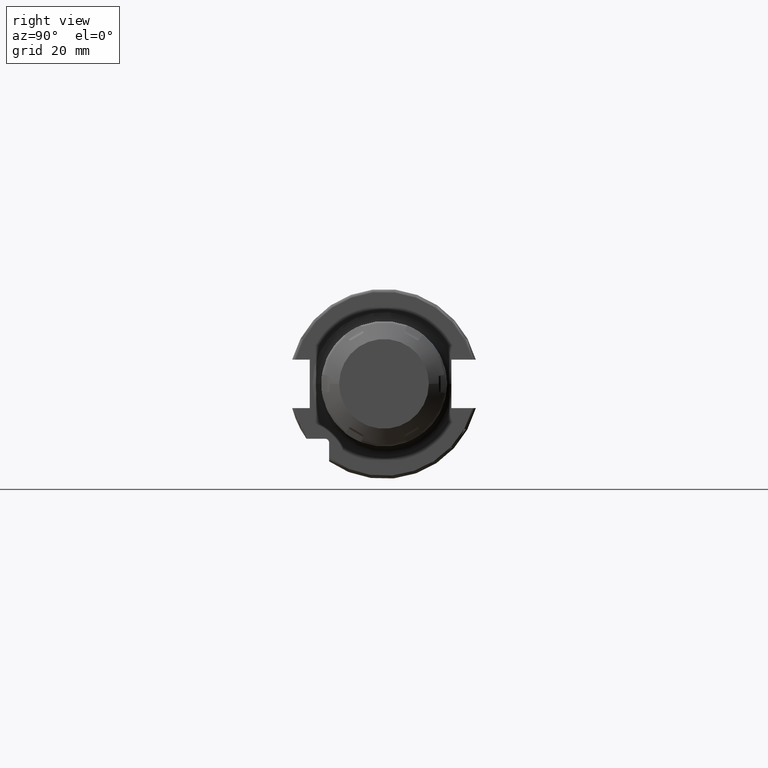
[diagram: clean part render]
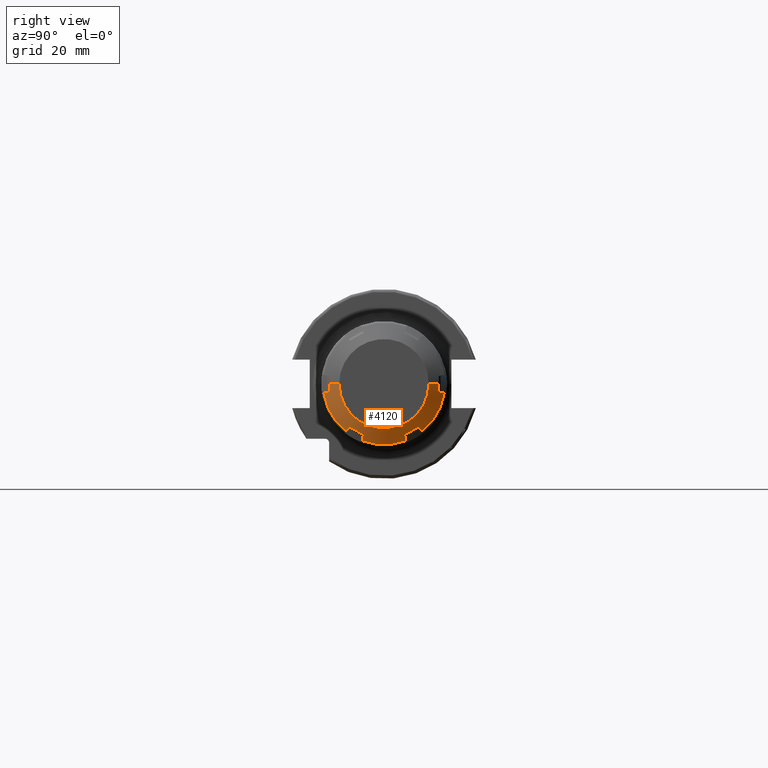
[diagram: same view with one face highlighted and labeled with its STEP entity id]
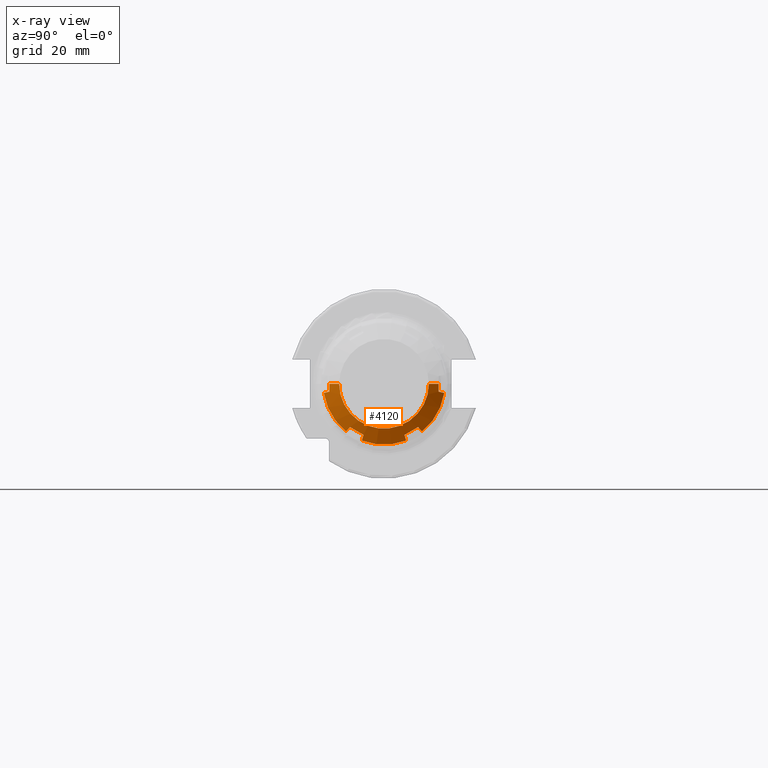
[diagram: x-ray of the same camera — body ghosted, the highlighted face saturated]
A machine part, right view. The second image highlights one B-rep face of the part: STEP entity #4120.
The next image is the same camera in x-ray: the body ghosted, the highlighted face saturated — about 0% of this face is hidden behind the body in this view.
In plain terms, the highlighted conical surface has half-angle 60 deg.
Its self-contained STEP definition (entity closure, byte-faithful):
#3184=CARTESIAN_POINT('',(1.689674230311E1,7.405303719456E0,-1.898162537357E1));
#3185=CARTESIAN_POINT('',(1.708907504526E1,7.313084535866E0,-1.866001886072E1));
#3186=CARTESIAN_POINT('',(1.747048804972E1,7.130166601835E0,-1.802210821554E1));
#3187=CARTESIAN_POINT('',(1.784538315893E1,6.950287483250E0,-1.739479517924E1));
#3188=CARTESIAN_POINT('',(1.803119743883E1,6.861107026386E0,-1.708378596587E1));
#3190=CARTESIAN_POINT('',(1.689674230311E1,-1.915276904626E-14,0.E0));
#3191=DIRECTION('',(-1.E0,0.E0,0.E0));
#3192=DIRECTION('',(0.E0,3.634504892985E-1,-9.316135152673E-1));
#3193=AXIS2_PLACEMENT_3D('',#3190,#3191,#3192);
#3195=CARTESIAN_POINT('',(1.803119743883E1,-6.861107026386E0,
-1.708378596587E1));
#3196=CARTESIAN_POINT('',(1.784547076956E1,-6.950245435050E0,
-1.739464853974E1));
#3197=CARTESIAN_POINT('',(1.747066334160E1,-7.130082516612E0,
-1.802181497552E1));
#3198=CARTESIAN_POINT('',(1.708916272E1,-7.313042497819E0,-1.865987225663E1));
#3199=CARTESIAN_POINT('',(1.689674230311E1,-7.405303719456E0,
-1.898162537357E1));
#3201=CARTESIAN_POINT('',(1.803119743883E1,-1.136443912607E1,
-1.448378596587E1));
#3202=CARTESIAN_POINT('',(1.807831826555E1,-1.086395978015E1,
-1.477273785096E1));
#3203=CARTESIAN_POINT('',(1.814168574823E1,-9.863120560131E0,
-1.535057264405E1));
#3204=CARTESIAN_POINT('',(1.814168449187E1,-8.362394930781E0,
-1.621701699013E1));
#3205=CARTESIAN_POINT('',(1.807831703246E1,-7.361573275411E0,
-1.679484164227E1));
#3206=CARTESIAN_POINT('',(1.803119743883E1,-6.861107026386E0,
-1.708378596587E1));
#3208=CARTESIAN_POINT('',(1.689674230311E1,-1.273591791890E1,
-1.590399383057E1));
#3209=CARTESIAN_POINT('',(1.708907504526E1,-1.250350810055E1,
-1.566332641844E1));
#3210=CARTESIAN_POINT('',(1.747048804972E1,-1.204252024350E1,
-1.518595951818E1));
#3211=CARTESIAN_POINT('',(1.784538315893E1,-1.158919077723E1,
-1.471652311372E1));
#3212=CARTESIAN_POINT('',(1.803119743883E1,-1.136443912607E1,
-1.448378596587E1));
#3214=CARTESIAN_POINT('',(1.689674230311E1,-1.915276904626E-14,0.E0));
#3215=DIRECTION('',(-1.E0,0.E0,0.E0));
#3216=DIRECTION('',(0.E0,-6.250757260812E-1,-7.805641143840E-1));
#3217=AXIS2_PLACEMENT_3D('',#3214,#3215,#3216);
#3219=CARTESIAN_POINT('',(1.803119743883E1,-1.822554615245E1,-2.6E0));
#3220=CARTESIAN_POINT('',(1.784547076956E1,-1.853933024284E1,
-2.678235160582E0));
#3221=CARTESIAN_POINT('',(1.747066334160E1,-1.917239084941E1,
-2.836074897296E0));
#3222=CARTESIAN_POINT('',(1.708916272E1,-1.981644465452E1,-2.996655546247E0));
#3223=CARTESIAN_POINT('',(1.689674230311E1,-2.014122163836E1,
-3.077631542997E0));
#3225=CARTESIAN_POINT('',(1.813773006060E1,-1.822554615245E1,0.E0));
#3226=CARTESIAN_POINT('',(1.813773006060E1,-1.822554615245E1,
-2.889809035546E-1));
#3227=CARTESIAN_POINT('',(1.812978891864E1,-1.822554615245E1,
-8.668802635554E-1));
#3228=CARTESIAN_POINT('',(1.809415446357E1,-1.822554615245E1,
-1.733491685998E0));
#3229=CARTESIAN_POINT('',(1.805474752385E1,-1.822554615245E1,
-2.311174784706E0));
#3230=CARTESIAN_POINT('',(1.803119743883E1,-1.822554615245E1,-2.6E0));
#3232=DIRECTION('',(-5.E-1,-8.660254037844E-1,0.E0));
#3233=VECTOR('',#3232,3.724539878802E0);
#3234=CARTESIAN_POINT('',(2.E1,-1.5E1,0.E0));
#3235=LINE('',#3234,#3233);
#3236=CARTESIAN_POINT('',(2.E1,-2.266909448450E-14,0.E0));
#3237=DIRECTION('',(-1.E0,0.E0,0.E0));
#3238=DIRECTION('',(0.E0,1.E0,0.E0));
#3239=AXIS2_PLACEMENT_3D('',#3236,#3237,#3238);
#3241=DIRECTION('',(-5.E-1,8.660254037844E-1,1.219275797742E-14));
#3242=VECTOR('',#3241,3.724539878802E0);
#3243=CARTESIAN_POINT('',(2.E1,1.5E1,0.E0));
#3244=LINE('',#3243,#3242);
#3245=CARTESIAN_POINT('',(1.803119743883E1,1.822554615245E1,-2.6E0));
#3246=CARTESIAN_POINT('',(1.805475075341E1,1.822554615245E1,-2.311135176476E0));
#3247=CARTESIAN_POINT('',(1.809415978675E1,1.822554615245E1,-1.733399257211E0));
#3248=CARTESIAN_POINT('',(1.812979067473E1,1.822554615245E1,
-8.668016124823E-1));
#3249=CARTESIAN_POINT('',(1.813773006060E1,1.822554615245E1,
-2.889472613191E-1));
#3250=CARTESIAN_POINT('',(1.813773006060E1,1.822554615245E1,
4.663706011864E-14));
#3252=CARTESIAN_POINT('',(1.689674230311E1,2.014122163836E1,-3.077631542997E0));
#3253=CARTESIAN_POINT('',(1.708907504526E1,1.981659263641E1,-2.996692442277E0));
#3254=CARTESIAN_POINT('',(1.747048804972E1,1.917268684533E1,-2.836148697367E0));
#3255=CARTESIAN_POINT('',(1.784538315893E1,1.853947826048E1,-2.678272065523E0));
#3256=CARTESIAN_POINT('',(1.803119743883E1,1.822554615245E1,-2.6E0));
#3258=CARTESIAN_POINT('',(1.689674230311E1,-1.915276904626E-14,0.E0));
#3259=DIRECTION('',(-1.E0,0.E0,0.E0));
#3260=DIRECTION('',(0.E0,9.885262153796E-1,-1.510494008833E-1));
#3261=AXIS2_PLACEMENT_3D('',#3258,#3259,#3260);
#3263=CARTESIAN_POINT('',(1.803119743883E1,1.136443912607E1,-1.448378596587E1));
#3264=CARTESIAN_POINT('',(1.784547076956E1,1.158908480779E1,-1.471641337916E1));
#3265=CARTESIAN_POINT('',(1.747066334160E1,1.204230833280E1,-1.518574007823E1));
#3266=CARTESIAN_POINT('',(1.708916272E1,1.250340215670E1,-1.566321671038E1));
#3267=CARTESIAN_POINT('',(1.689674230311E1,1.273591791890E1,-1.590399383057E1));
#3269=CARTESIAN_POINT('',(1.803119743883E1,6.861107026386E0,-1.708378596587E1));
#3270=CARTESIAN_POINT('',(1.807831826555E1,7.361586372305E0,-1.679483408078E1));
#3271=CARTESIAN_POINT('',(1.814168574823E1,8.362425592320E0,-1.621699928769E1));
#3272=CARTESIAN_POINT('',(1.814168449187E1,9.863151221670E0,-1.535055494160E1));
#3273=CARTESIAN_POINT('',(1.807831703246E1,1.086397287704E1,-1.477273028946E1));
#3274=CARTESIAN_POINT('',(1.803119743883E1,1.136443912607E1,-1.448378596587E1));
#3551=CARTESIAN_POINT('',(1.813773006060E1,1.822554615245E1,
4.663706011864E-14));
#3568=CARTESIAN_POINT('',(1.813773006060E1,-1.822554615245E1,0.E0));
#3968=CARTESIAN_POINT('',(2.E1,1.5E1,0.E0));
#3969=CARTESIAN_POINT('',(2.E1,-1.5E1,0.E0));
#3970=VERTEX_POINT('',#3968);
#3971=VERTEX_POINT('',#3969);
#3982=VERTEX_POINT('',#3551);
#3983=VERTEX_POINT('',#3252);
#3984=VERTEX_POINT('',#3256);
#4027=VERTEX_POINT('',#3568);
#4028=VERTEX_POINT('',#3219);
#4029=VERTEX_POINT('',#3223);
#4042=VERTEX_POINT('',#3208);
#4043=VERTEX_POINT('',#3212);
#4044=VERTEX_POINT('',#3195);
#4045=VERTEX_POINT('',#3199);
#4056=VERTEX_POINT('',#3184);
#4057=VERTEX_POINT('',#3188);
#4058=VERTEX_POINT('',#3263);
#4059=VERTEX_POINT('',#3267);
#4082=CARTESIAN_POINT('',(1.844837115155E1,-2.091093176538E-14,0.E0));
#4083=DIRECTION('',(-1.E0,0.E0,0.E0));
#4084=DIRECTION('',(0.E0,1.E0,0.E0));
#4085=AXIS2_PLACEMENT_3D('',#4082,#4083,#4084);
#4086=CONICAL_SURFACE('',#4085,1.76875E1,6.E1);
#4088=ORIENTED_EDGE('',*,*,#4087,.F.);
#4090=ORIENTED_EDGE('',*,*,#4089,.T.);
#4092=ORIENTED_EDGE('',*,*,#4091,.F.);
#4094=ORIENTED_EDGE('',*,*,#4093,.F.);
#4096=ORIENTED_EDGE('',*,*,#4095,.F.);
#4098=ORIENTED_EDGE('',*,*,#4097,.T.);
#4100=ORIENTED_EDGE('',*,*,#4099,.F.);
#4102=ORIENTED_EDGE('',*,*,#4101,.F.);
#4104=ORIENTED_EDGE('',*,*,#4103,.F.);
#4105=ORIENTED_EDGE('',*,*,#4075,.F.);
#4107=ORIENTED_EDGE('',*,*,#4106,.T.);
#4109=ORIENTED_EDGE('',*,*,#4108,.F.);
#4111=ORIENTED_EDGE('',*,*,#4110,.F.);
#4113=ORIENTED_EDGE('',*,*,#4112,.T.);
#4115=ORIENTED_EDGE('',*,*,#4114,.F.);
#4117=ORIENTED_EDGE('',*,*,#4116,.F.);
#4118=EDGE_LOOP('',(#4088,#4090,#4092,#4094,#4096,#4098,#4100,#4102,#4104,#4105,
#4107,#4109,#4111,#4113,#4115,#4117));
#4119=FACE_OUTER_BOUND('',#4118,.F.);
#4120=ADVANCED_FACE('',(#4119),#4086,.T.);
#3189=B_SPLINE_CURVE_WITH_KNOTS('',3,(#3184,#3185,#3186,#3187,#3188),
.UNSPECIFIED.,.F.,.F.,(4,1,4),(0.E0,5.E-1,1.E0),.UNSPECIFIED.);
#3194=CIRCLE('',#3193,2.0375E1);
#3200=B_SPLINE_CURVE_WITH_KNOTS('',3,(#3195,#3196,#3197,#3198,#3199),
.UNSPECIFIED.,.F.,.F.,(4,1,4),(0.E0,5.E-1,1.E0),.UNSPECIFIED.);
#3207=B_SPLINE_CURVE_WITH_KNOTS('',3,(#3201,#3202,#3203,#3204,#3205,#3206),
.UNSPECIFIED.,.F.,.F.,(4,1,1,4),(0.E0,3.333333333333E-1,6.666666666667E-1,1.E0),
.UNSPECIFIED.);
#3213=B_SPLINE_CURVE_WITH_KNOTS('',3,(#3208,#3209,#3210,#3211,#3212),
.UNSPECIFIED.,.F.,.F.,(4,1,4),(0.E0,5.E-1,1.E0),.UNSPECIFIED.);
#3218=CIRCLE('',#3217,2.0375E1);
#3224=B_SPLINE_CURVE_WITH_KNOTS('',3,(#3219,#3220,#3221,#3222,#3223),
.UNSPECIFIED.,.F.,.F.,(4,1,4),(0.E0,5.E-1,1.E0),.UNSPECIFIED.);
#3231=B_SPLINE_CURVE_WITH_KNOTS('',3,(#3225,#3226,#3227,#3228,#3229,#3230),
.UNSPECIFIED.,.F.,.F.,(4,1,1,4),(0.E0,3.333333333333E-1,6.666666666667E-1,1.E0),
.UNSPECIFIED.);
#3240=CIRCLE('',#3239,1.5E1);
#3251=B_SPLINE_CURVE_WITH_KNOTS('',3,(#3245,#3246,#3247,#3248,#3249,#3250),
.UNSPECIFIED.,.F.,.F.,(4,1,1,4),(0.E0,3.333333333333E-1,6.666666666667E-1,1.E0),
.UNSPECIFIED.);
#3257=B_SPLINE_CURVE_WITH_KNOTS('',3,(#3252,#3253,#3254,#3255,#3256),
.UNSPECIFIED.,.F.,.F.,(4,1,4),(0.E0,5.E-1,1.E0),.UNSPECIFIED.);
#3262=CIRCLE('',#3261,2.0375E1);
#3268=B_SPLINE_CURVE_WITH_KNOTS('',3,(#3263,#3264,#3265,#3266,#3267),
.UNSPECIFIED.,.F.,.F.,(4,1,4),(0.E0,5.E-1,1.E0),.UNSPECIFIED.);
#3275=B_SPLINE_CURVE_WITH_KNOTS('',3,(#3269,#3270,#3271,#3272,#3273,#3274),
.UNSPECIFIED.,.F.,.F.,(4,1,1,4),(0.E0,3.333333333333E-1,6.666666666667E-1,1.E0),
.UNSPECIFIED.);
#4075=EDGE_CURVE('',#3970,#3971,#3240,.T.);
#4087=EDGE_CURVE('',#4056,#4057,#3189,.T.);
#4089=EDGE_CURVE('',#4056,#4045,#3194,.T.);
#4091=EDGE_CURVE('',#4044,#4045,#3200,.T.);
#4093=EDGE_CURVE('',#4043,#4044,#3207,.T.);
#4095=EDGE_CURVE('',#4042,#4043,#3213,.T.);
#4097=EDGE_CURVE('',#4042,#4029,#3218,.T.);
#4099=EDGE_CURVE('',#4028,#4029,#3224,.T.);
#4101=EDGE_CURVE('',#4027,#4028,#3231,.T.);
#4103=EDGE_CURVE('',#3971,#4027,#3235,.T.);
#4106=EDGE_CURVE('',#3970,#3982,#3244,.T.);
#4108=EDGE_CURVE('',#3984,#3982,#3251,.T.);
#4110=EDGE_CURVE('',#3983,#3984,#3257,.T.);
#4112=EDGE_CURVE('',#3983,#4059,#3262,.T.);
#4114=EDGE_CURVE('',#4058,#4059,#3268,.T.);
#4116=EDGE_CURVE('',#4057,#4058,#3275,.T.);